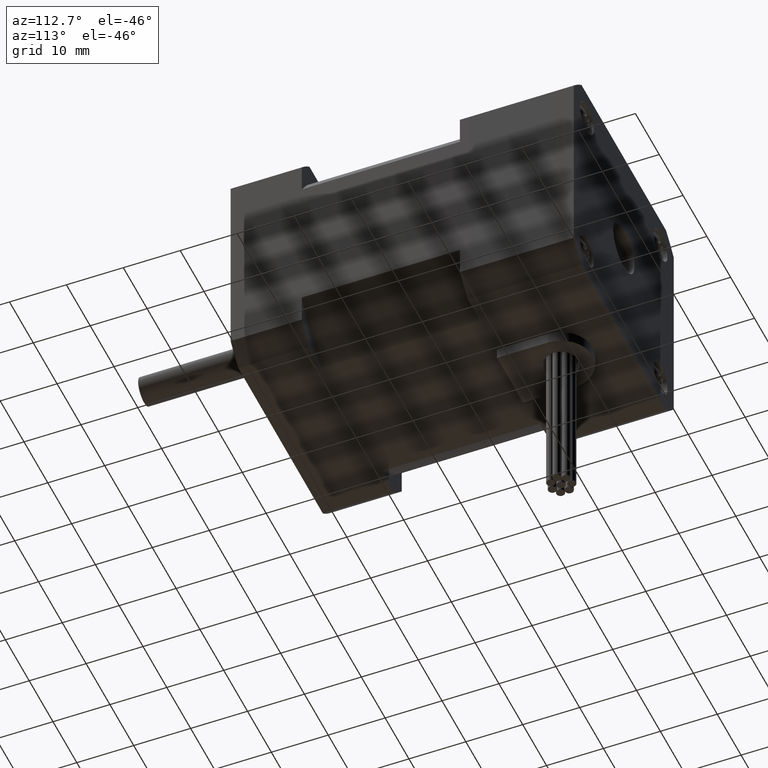
[diagram: clean part render]
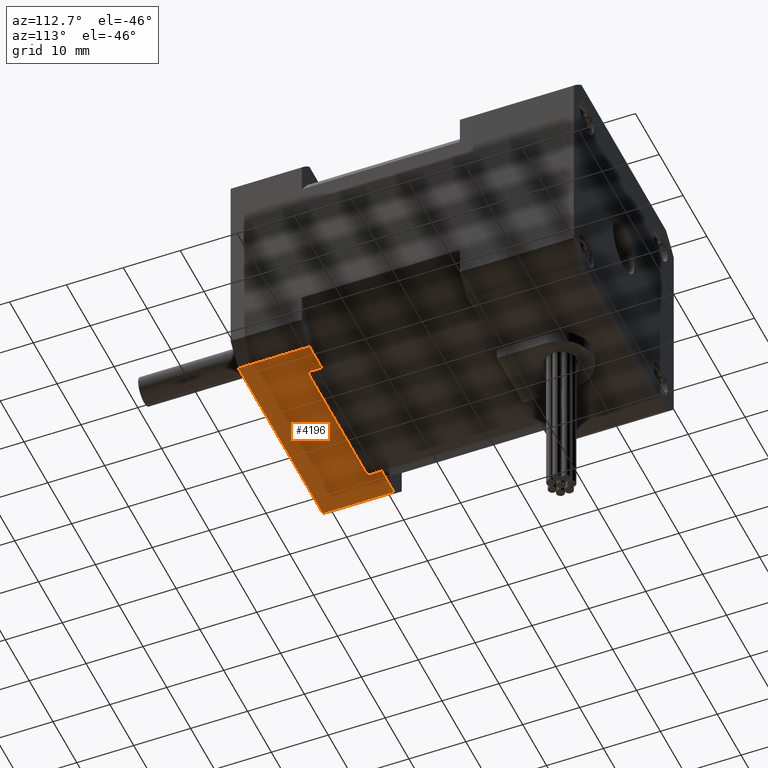
[diagram: same view with one face highlighted and labeled with its STEP entity id]
A machine part, auxiliary view. The second image highlights one B-rep face of the part: STEP entity #4196.
In plain terms, the highlighted planar face has unit normal (-0, -0, -1).
Its self-contained STEP definition (entity closure, byte-faithful):
#228=PLANE('',#4547);
#394=LINE('',#6487,#616);
#398=LINE('',#6504,#620);
#402=LINE('',#6514,#624);
#404=LINE('',#6520,#626);
#405=LINE('',#6522,#627);
#406=LINE('',#6524,#628);
#407=LINE('',#6526,#629);
#408=LINE('',#6527,#630);
#616=VECTOR('',#5255,0.25);
#620=VECTOR('',#5271,2.52388589282479);
#624=VECTOR('',#5281,0.25);
#626=VECTOR('',#5287,0.513585144044074);
#627=VECTOR('',#5288,1.25);
#628=VECTOR('',#5289,3.55105618091294);
#629=VECTOR('',#5290,1.25);
#630=VECTOR('',#5291,0.513585144044074);
#930=FACE_OUTER_BOUND('',#1230,.T.);
#1230=EDGE_LOOP('',(#2943,#2944,#2945,#2946,#2947,#2948,#2949,#2950));
#1811=VERTEX_POINT('',#6485);
#1812=VERTEX_POINT('',#6486);
#1819=VERTEX_POINT('',#6503);
#1822=VERTEX_POINT('',#6513);
#1824=VERTEX_POINT('',#6519);
#1825=VERTEX_POINT('',#6521);
#1826=VERTEX_POINT('',#6523);
#1827=VERTEX_POINT('',#6525);
#2243=EDGE_CURVE('',#1811,#1812,#394,.T.);
#2251=EDGE_CURVE('',#1819,#1811,#398,.T.);
#2257=EDGE_CURVE('',#1822,#1819,#402,.T.);
#2260=EDGE_CURVE('',#1824,#1812,#404,.T.);
#2261=EDGE_CURVE('',#1825,#1824,#405,.T.);
#2262=EDGE_CURVE('',#1825,#1826,#406,.T.);
#2263=EDGE_CURVE('',#1826,#1827,#407,.T.);
#2264=EDGE_CURVE('',#1822,#1827,#408,.T.);
#2943=ORIENTED_EDGE('',*,*,#2257,.T.);
#2944=ORIENTED_EDGE('',*,*,#2251,.T.);
#2945=ORIENTED_EDGE('',*,*,#2243,.T.);
#2946=ORIENTED_EDGE('',*,*,#2260,.F.);
#2947=ORIENTED_EDGE('',*,*,#2261,.F.);
#2948=ORIENTED_EDGE('',*,*,#2262,.T.);
#2949=ORIENTED_EDGE('',*,*,#2263,.T.);
#2950=ORIENTED_EDGE('',*,*,#2264,.F.);
#4196=ADVANCED_FACE('',(#930),#228,.T.);
#4547=AXIS2_PLACEMENT_3D('',#6518,#5285,#5286);
#5255=DIRECTION('',(1.33226762955019E-16,1.,-1.24501532695106E-16));
#5271=DIRECTION('',(1.,-1.33226762955019E-16,1.65869361839074E-32));
#5281=DIRECTION('',(-1.33226762955019E-16,-1.,1.24501532695106E-16));
#5285=DIRECTION('center_axis',(-8.21073318940323E-48,-1.24501532695106E-16,
-1.));
#5286=DIRECTION('ref_axis',(-1.,0.,0.));
#5287=DIRECTION('',(-1.,1.33226762955019E-16,-1.65869361839074E-32));
#5288=DIRECTION('',(1.33226762955019E-16,1.,-1.24501532695106E-16));
#5289=DIRECTION('',(-1.,1.33226762955019E-16,-1.65869361839074E-32));
#5290=DIRECTION('',(1.33226762955019E-16,1.,-1.24501532695106E-16));
#5291=DIRECTION('',(-1.,1.33226762955019E-16,-1.65869361839074E-32));
#6485=CARTESIAN_POINT('',(0.84668299311342,-1.33735649038034,-0.652197207720413));
#6486=CARTESIAN_POINT('',(0.84668299311342,-1.08735649038034,-0.652197207720413));
#6487=CARTESIAN_POINT('',(0.84668299311342,-1.08735649038034,-0.652197207720413));
#6503=CARTESIAN_POINT('',(-1.67720289971137,-1.33735649038034,-0.652197207720413));
#6504=CARTESIAN_POINT('',(0.472504091929258,-1.33735649038034,-0.652197207720413));
#6513=CARTESIAN_POINT('',(-1.67720289971137,-1.08735649038034,-0.652197207720413));
#6514=CARTESIAN_POINT('',(-1.67720289971137,-1.08735649038034,-0.652197207720413));
#6518=CARTESIAN_POINT('Origin',(1.36026813715749,-2.33735649038034,-0.652197207720413));
#6519=CARTESIAN_POINT('',(1.36026813715749,-1.08735649038034,-0.652197207720413));
#6520=CARTESIAN_POINT('',(1.36026813715749,-1.08735649038034,-0.652197207720413));
#6521=CARTESIAN_POINT('',(1.36026813715749,-2.33735649038034,-0.652197207720413));
#6522=CARTESIAN_POINT('',(1.36026813715749,-2.33735649038034,-0.652197207720413));
#6523=CARTESIAN_POINT('',(-2.19078804375545,-2.33735649038034,-0.652197207720413));
#6524=CARTESIAN_POINT('',(1.36026813715749,-2.33735649038034,-0.652197207720413));
#6525=CARTESIAN_POINT('',(-2.19078804375545,-1.08735649038034,-0.652197207720413));
#6526=CARTESIAN_POINT('',(-2.19078804375545,-2.33735649038034,-0.652197207720413));
#6527=CARTESIAN_POINT('',(1.36026813715749,-1.08735649038034,-0.652197207720413));